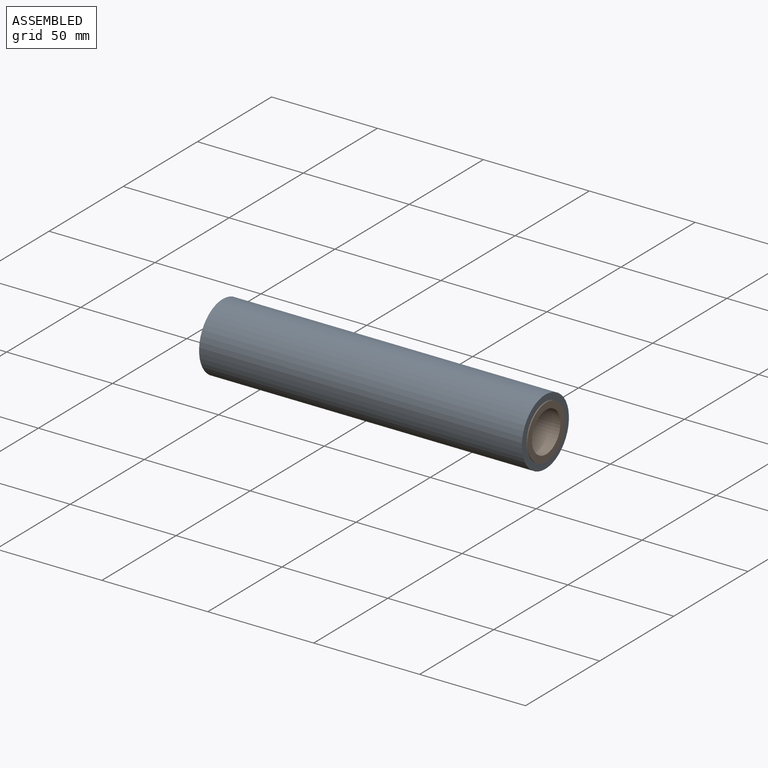
[diagram: assembled view]
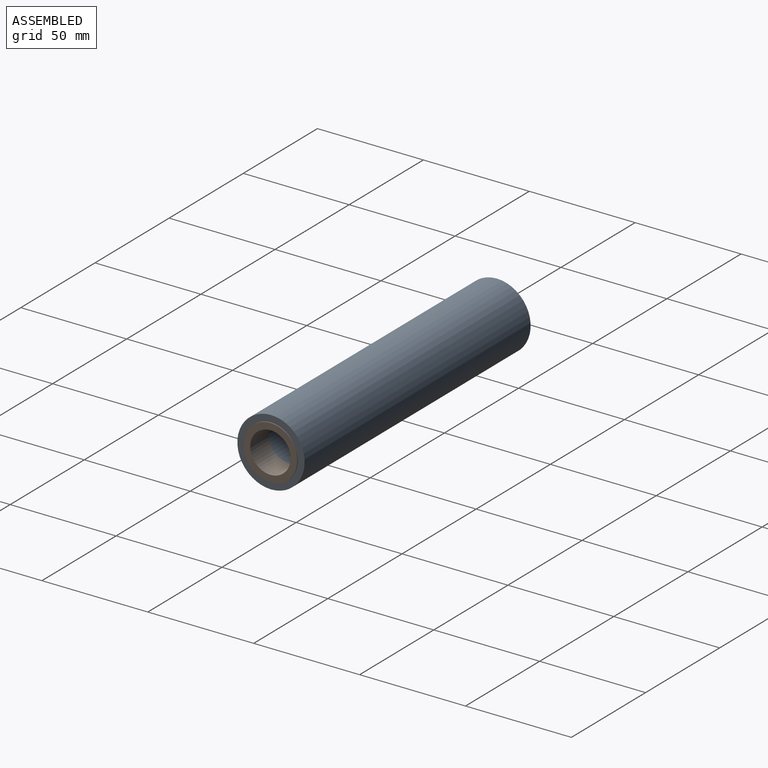
[diagram: assembled view, second angle]
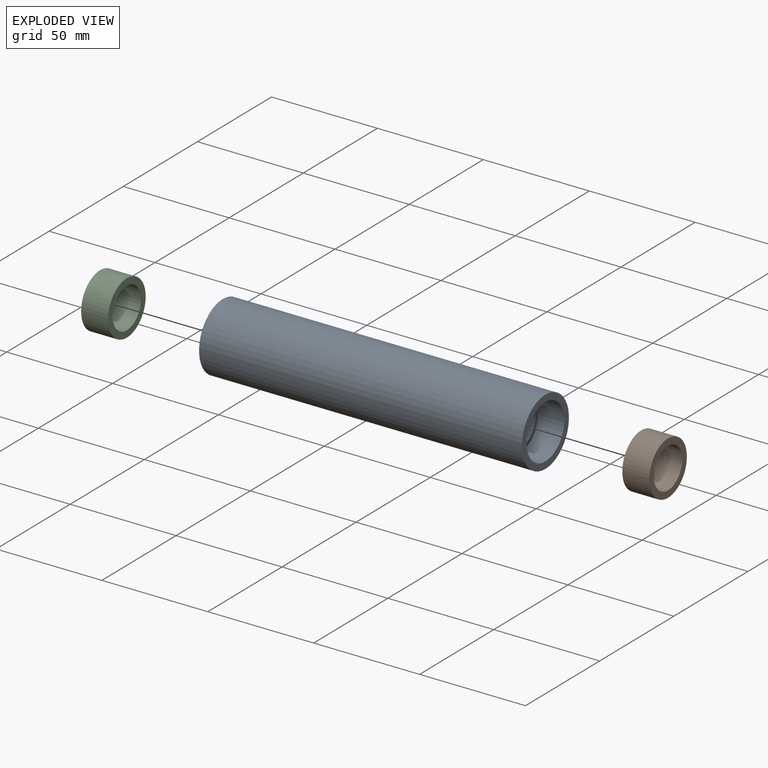
[diagram: exploded view]
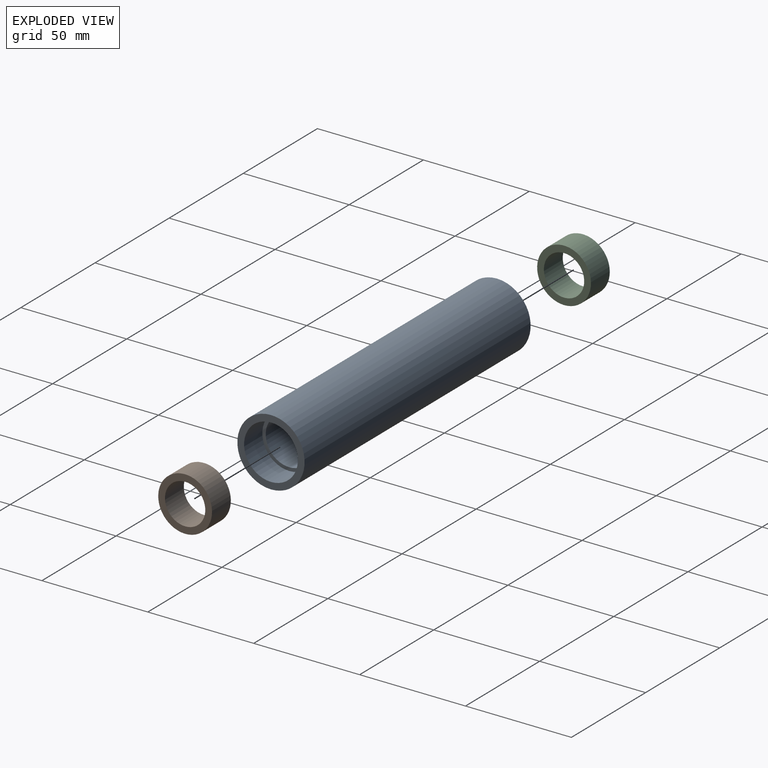
[diagram: exploded view, second angle]
ASSEMBLY  parts=3 mates=2
PART A: 8 faces, bbox 152.4x31.8x31.8 mm
  f0: cylinder r=11.11mm len=127.81mm, axis (1,0,0), area 8924.1mm2, adj f4,f6
  f1: cylinder r=15.88mm len=152.4mm, axis (1,0,0), area 15201.2mm2, adj f2,f3
  f2: plane 31.75x31.75mm, normal (-1,0,0), area 285mm2, adj f1,f7
  f3: plane 31.75x31.75mm, normal (1,0,0), area 285mm2, adj f1,f5
  f4: plane 25.4x25.4mm, normal (1,0,0), area 118.8mm2, adj f0,f5
  f5: cylinder r=12.7mm len=25.4mm, axis (1,0,0), area 981mm2, adj f3,f4
  f6: plane 25.4x25.4mm, normal (-1,0,0), area 118.8mm2, adj f0,f7
  f7: cylinder r=12.7mm len=25.4mm, axis (-1,0,0), area 981mm2, adj f2,f6
PART B: 4 faces, bbox 12.7x25.4x25.4 mm
  f0: cylinder r=9.53mm len=19.05mm, axis (1,0,0), area 760.1mm2, adj f2,f3
  f1: cylinder r=12.7mm len=25.4mm, axis (1,0,0), area 1013.4mm2, adj f2,f3
  f2: plane 25.4x25.4mm, normal (-1,0,0), area 221.7mm2, adj f0,f1
  f3: plane 25.4x25.4mm, normal (1,0,0), area 221.7mm2, adj f0,f1
PART C: same geometry as B
PLACE A t=(35,-22.34,-33.04)mm
PLACE B t=(35.41,-22.34,-33.04)mm
PLACE C t=(-105.11,-22.34,-33.04)mm
MATE revolute A.f0 <-> B.f1  axis (1,0,0) through (22.71,-22.34,-33.04)mm
MATE revolute C.f1 <-> A.f1  axis (1,0,0) through (-105.11,-22.34,-33.04)mm
